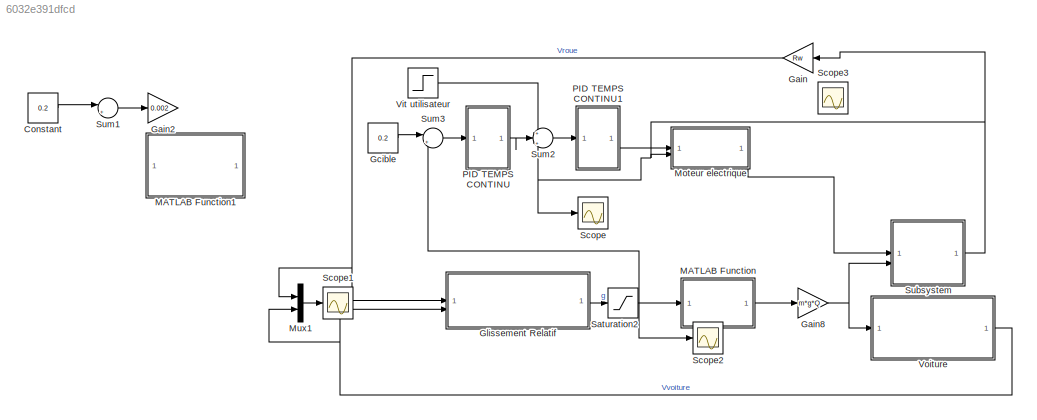
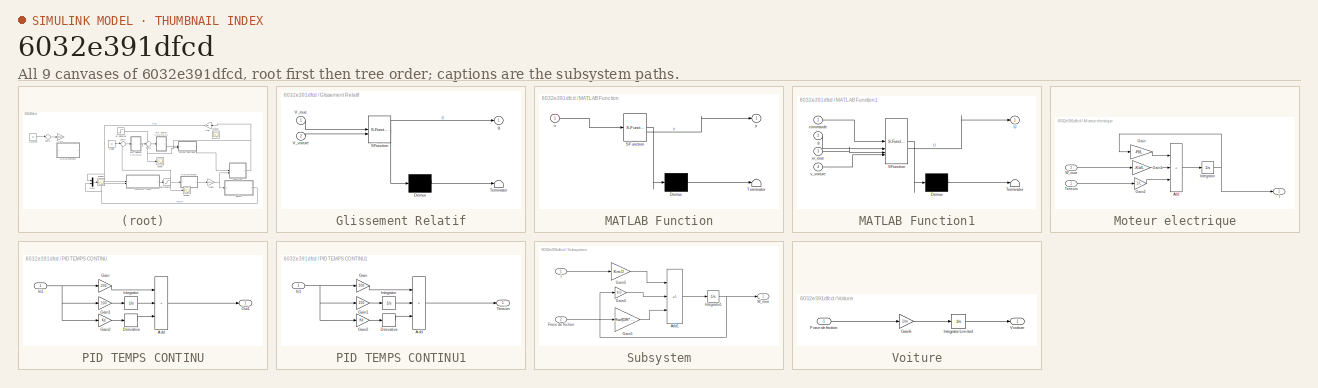
[diagram: thumbnail index - all 9 canvases of the model, root first then tree order]
MODEL slx_6032e391dfcd
KIND model
CONFIG AbsTol = auto
CONFIG EnableMultiTasking = off
CONFIG FixedStep = auto
CONFIG InitFcn = Cte_Traction
CONFIG MaxStep = auto
CONFIG MinStep = auto
CONFIG RelTol = 1e-3
CONFIG SampleTimeConstraint = Unconstrained
CONFIG SolverName = ode45
CONFIG StartTime = 0.0
CONFIG StopTime = 10
BLOCK [Constant] Constant
  Value = 0.2
BLOCK [Gain] Gain
  Gain = Rw
  NameLocation = top
BLOCK [Gain] Gain2
  Gain = 0.002
BLOCK [Gain] Gain8
  Gain = m*g*Q
BLOCK [Constant] Gcible
  Value = 0.2
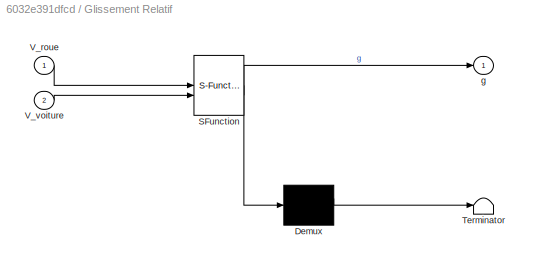
BLOCK [SubSystem] Glissement Relatif
  ErrorFcn = Stateflow.Translate.translate
  PermitHierarchicalResolution = ExplicitOnly
  SFBlockType = MATLAB Function
  TreatAsAtomicUnit = on
BLOCK [Demux] Glissement Relatif/ Demux 
  Outputs = 1
BLOCK [S-Function] Glissement Relatif/ SFunction 
  EnableBusSupport = on
  FunctionName = sf_sfun
  PortCounts = [2 2]
  SFcnIsStateOwnerBlock = off
  SFunctionDeploymentMode = off
  Tag = Stateflow S-Function 1
BLOCK [Terminator] Glissement Relatif/ Terminator 
BLOCK [Inport] Glissement Relatif/V_roue
BLOCK [Inport] Glissement Relatif/V_voiture
  Port = 2
BLOCK [Outport] Glissement Relatif/g
BLOCK [SubSystem] MATLAB Function
  ErrorFcn = Stateflow.Translate.translate
  PermitHierarchicalResolution = ExplicitOnly
  SFBlockType = MATLAB Function
  TreatAsAtomicUnit = on
BLOCK [Demux] MATLAB Function/ Demux 
  Outputs = 1
BLOCK [S-Function] MATLAB Function/ SFunction 
  EnableBusSupport = on
  FunctionName = sf_sfun
  PortCounts = [1 2]
  SFcnIsStateOwnerBlock = off
  SFunctionDeploymentMode = off
  Tag = Stateflow S-Function 2
BLOCK [Terminator] MATLAB Function/ Terminator 
BLOCK [Inport] MATLAB Function/u
BLOCK [Outport] MATLAB Function/y
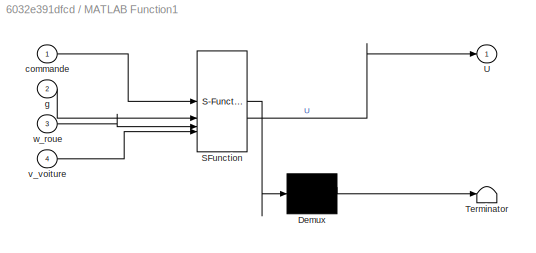
BLOCK [SubSystem] MATLAB Function1
  ErrorFcn = Stateflow.Translate.translate
  PermitHierarchicalResolution = ExplicitOnly
  SFBlockType = MATLAB Function
  TreatAsAtomicUnit = on
BLOCK [Demux] MATLAB Function1/ Demux 
  Outputs = 1
BLOCK [S-Function] MATLAB Function1/ SFunction 
  EnableBusSupport = on
  FunctionName = sf_sfun
  PortCounts = [4 2]
  SFcnIsStateOwnerBlock = off
  SFunctionDeploymentMode = off
  Tag = Stateflow S-Function 3
BLOCK [Terminator] MATLAB Function1/ Terminator 
BLOCK [Outport] MATLAB Function1/U
BLOCK [Inport] MATLAB Function1/commande
BLOCK [Inport] MATLAB Function1/g
  Port = 2
BLOCK [Inport] MATLAB Function1/v_voiture
  Port = 4
BLOCK [Inport] MATLAB Function1/w_roue
  Port = 3
BLOCK [SubSystem] Moteur electrique
BLOCK [Sum] Moteur electrique/Add
  IconShape = rectangular
  Inputs = +++
BLOCK [Gain] Moteur electrique/Gain
  Gain = -R/L
BLOCK [Gain] Moteur electrique/Gain1
  Gain = -Kb/L
BLOCK [Gain] Moteur electrique/Gain2
  Gain = 1/L
BLOCK [Outport] Moteur electrique/I
BLOCK [Integrator] Moteur electrique/Integrator
BLOCK [Inport] Moteur electrique/Tension
BLOCK [Inport] Moteur electrique/W_roue
  Port = 2
BLOCK [Mux] Mux1
  DisplayOption = bar
  Inputs = 2
BLOCK [SubSystem] PID TEMPS CONTINU
BLOCK [Sum] PID TEMPS CONTINU/Add
  IconShape = rectangular
  Inputs = +++
BLOCK [Derivative] PID TEMPS CONTINU/Derivative
BLOCK [Gain] PID TEMPS CONTINU/Gain
  Gain = 200
BLOCK [Gain] PID TEMPS CONTINU/Gain1
  Gain = 100
BLOCK [Gain] PID TEMPS CONTINU/Gain2
  Gain = Kd
BLOCK [Inport] PID TEMPS CONTINU/In1
BLOCK [Integrator] PID TEMPS CONTINU/Integrator
BLOCK [Outport] PID TEMPS CONTINU/Out1
BLOCK [SubSystem] PID TEMPS CONTINU1
BLOCK [Sum] PID TEMPS CONTINU1/Add
  IconShape = rectangular
  Inputs = +++
BLOCK [Derivative] PID TEMPS CONTINU1/Derivative
BLOCK [Gain] PID TEMPS CONTINU1/Gain
  Gain = 200
BLOCK [Gain] PID TEMPS CONTINU1/Gain1
  Gain = 100
BLOCK [Gain] PID TEMPS CONTINU1/Gain2
  Gain = Kd
BLOCK [Inport] PID TEMPS CONTINU1/In1
BLOCK [Integrator] PID TEMPS CONTINU1/Integrator
BLOCK [Outport] PID TEMPS CONTINU1/Tension
BLOCK [Saturate] Saturation2
  LowerLimit = -1
  UpperLimit = 1
BLOCK [Scope] Scope
  Floating = off
  NumInputPorts = 1
  ScopeSpecificationString = Simulink.scopes.TimeScopeBlockCfg('CurrentConfiguration', extmgr.ConfigurationSet(extmgr.Configuration('Core','General UI',true),extmgr.Configuration('Core','Source UI',true),extmgr.Configuration('Sources','WiredSimulink',true,'DataLoggingVariableName','ScopeData1'),extmgr.Configuration('Visuals','Time Domain',true,'SerializedDisplays',{struct('MinYLimReal','-2.24229','MaxYLimReal','20.18061','YLa...<+1503ch>
BLOCK [Scope] Scope1
  Floating = off
  NumInputPorts = 1
  ScopeSpecificationString = Simulink.scopes.TimeScopeBlockCfg('CurrentConfiguration', extmgr.ConfigurationSet(extmgr.Configuration('Core','General UI',true),extmgr.Configuration('Core','Source UI',true),extmgr.Configuration('Sources','WiredSimulink',true,'DataLoggingVariableName','ScopeData1'),extmgr.Configuration('Visuals','Time Domain',true,'SerializedDisplays',{struct('MinYLimReal','-0.67244','MaxYLimReal','6.05197','YLab...<+1528ch>
BLOCK [Scope] Scope2
  Floating = off
  NumInputPorts = 1
  ScopeSpecificationString = Simulink.scopes.TimeScopeBlockCfg('CurrentConfiguration', extmgr.ConfigurationSet(extmgr.Configuration('Core','General UI',true),extmgr.Configuration('Core','Source UI',true),extmgr.Configuration('Sources','WiredSimulink',true,'DataLoggingVariableName','ScopeData2'),extmgr.Configuration('Visuals','Time Domain',true,'SerializedDisplays',{struct('MinYLimReal','-0.02521','MaxYLimReal','0.22691','YLab...<+1499ch>
BLOCK [Scope] Scope3
  Floating = off
  NumInputPorts = 1
  ScopeSpecificationString = Simulink.scopes.TimeScopeBlockCfg('CurrentConfiguration', extmgr.ConfigurationSet(extmgr.Configuration('Core','General UI',true),extmgr.Configuration('Core','Source UI',true),extmgr.Configuration('Sources','WiredSimulink',true,'DataLoggingVariableName','ScopeData3'),extmgr.Configuration('Visuals','Time Domain',true,'SerializedDisplays',{struct('MinYLimReal','-1.00000','MaxYLimReal','1.00000','YLab...<+1534ch>
BLOCK [SubSystem] Subsystem
BLOCK [Sum] Subsystem/Add1
  IconShape = rectangular
  Inputs = +--
BLOCK [Inport] Subsystem/Froce de friction
  Port = 2
BLOCK [Gain] Subsystem/Gain3
  Gain = Km/J
BLOCK [Gain] Subsystem/Gain4
  Gain = b/J
BLOCK [Gain] Subsystem/Gain5
  Gain = Rw/(GR*J)
BLOCK [Inport] Subsystem/I
BLOCK [Integrator] Subsystem/Integrator1
BLOCK [Outport] Subsystem/W_roue
BLOCK [Sum] Sum1
  Inputs = |+-
BLOCK [Sum] Sum2
  Inputs = +|+-
BLOCK [Sum] Sum3
  Inputs = |+-
BLOCK [Step] Vit utilisateur
  SampleTime = 0
  Time = 400
BLOCK [SubSystem] Voiture
BLOCK [Inport] Voiture/Force de friction
BLOCK [Gain] Voiture/Gain6
  Gain = 1/m
BLOCK [Integrator] Voiture/Integrator Limited
  LimitOutput = on
  LowerSaturationLimit = 0
  UpperSaturationLimit = +inf
BLOCK [Outport] Voiture/Vvoiture
LINE Constant:1 -> Sum1:1
NET Gain8:1 -> Subsystem:2, Voiture:1
NET Gain:1 -> Glissement Relatif:1, Mux1:1
LINE Gcible:1 -> Sum3:1
LINE Glissement Relatif:1 -> Saturation2:1
LINE MATLAB Function:1 -> Gain8:1
LINE Moteur electrique/Add:1 -> Moteur electrique/Integrator:1
LINE Moteur electrique/Gain1:1 -> Moteur electrique/Add:2
LINE Moteur electrique/Gain2:1 -> Moteur electrique/Add:3
LINE Moteur electrique/Gain:1 -> Moteur electrique/Add:1
NET Moteur electrique/Integrator:1 -> Moteur electrique/Gain:1, Moteur electrique/I:1
LINE Moteur electrique/Tension:1 -> Moteur electrique/Gain2:1
LINE Moteur electrique/W_roue:1 -> Moteur electrique/Gain1:1
LINE Moteur electrique:1 -> Subsystem:1
LINE Mux1:1 -> Scope1:1
LINE PID TEMPS CONTINU/Add:1 -> PID TEMPS CONTINU/Out1:1
LINE PID TEMPS CONTINU/Derivative:1 -> PID TEMPS CONTINU/Add:3
LINE PID TEMPS CONTINU/Gain1:1 -> PID TEMPS CONTINU/Integrator:1
LINE PID TEMPS CONTINU/Gain2:1 -> PID TEMPS CONTINU/Derivative:1
LINE PID TEMPS CONTINU/Gain:1 -> PID TEMPS CONTINU/Add:1
NET PID TEMPS CONTINU/In1:1 -> PID TEMPS CONTINU/Gain1:1, PID TEMPS CONTINU/Gain2:1, PID TEMPS CONTINU/Gain:1
LINE PID TEMPS CONTINU/Integrator:1 -> PID TEMPS CONTINU/Add:2
LINE PID TEMPS CONTINU1/Add:1 -> PID TEMPS CONTINU1/Tension:1
LINE PID TEMPS CONTINU1/Derivative:1 -> PID TEMPS CONTINU1/Add:3
LINE PID TEMPS CONTINU1/Gain1:1 -> PID TEMPS CONTINU1/Integrator:1
LINE PID TEMPS CONTINU1/Gain2:1 -> PID TEMPS CONTINU1/Derivative:1
LINE PID TEMPS CONTINU1/Gain:1 -> PID TEMPS CONTINU1/Add:1
NET PID TEMPS CONTINU1/In1:1 -> PID TEMPS CONTINU1/Gain1:1, PID TEMPS CONTINU1/Gain2:1, PID TEMPS CONTINU1/Gain:1
LINE PID TEMPS CONTINU1/Integrator:1 -> PID TEMPS CONTINU1/Add:2
LINE PID TEMPS CONTINU1:1 -> Moteur electrique:1
LINE PID TEMPS CONTINU:1 -> Sum2:2
NET Saturation2:1 -> MATLAB Function:1, Scope2:1, Sum3:2
LINE Subsystem/Add1:1 -> Subsystem/Integrator1:1
LINE Subsystem/Froce de friction:1 -> Subsystem/Gain5:1
LINE Subsystem/Gain3:1 -> Subsystem/Add1:1
LINE Subsystem/Gain4:1 -> Subsystem/Add1:2
LINE Subsystem/Gain5:1 -> Subsystem/Add1:3
LINE Subsystem/I:1 -> Subsystem/Gain3:1
NET Subsystem/Integrator1:1 -> Subsystem/Gain4:1, Subsystem/W_roue:1
NET Subsystem:1 -> Gain:1, Moteur electrique:2, Scope:1, Sum2:3
LINE Sum1:1 -> Gain2:1
LINE Sum2:1 -> PID TEMPS CONTINU1:1
LINE Sum3:1 -> PID TEMPS CONTINU:1
LINE Vit utilisateur:1 -> Sum2:1
LINE Voiture/Force de friction:1 -> Voiture/Gain6:1
LINE Voiture/Gain6:1 -> Voiture/Integrator Limited:1
LINE Voiture/Integrator Limited:1 -> Voiture/Vvoiture:1
NET Voiture:1 -> Glissement Relatif:2, Mux1:2
note: NET lines group one-source signal fan-out (src -> all destinations, sorted); 1:1 wires keep LINE
CHART Glissement Relatif states=1 transitions=1
  STATE_LABEL 'eML_blk_kernel()'
  STATE_LABEL 'SCRIPT:\nfunction g = calcGlissement(V_roue, V_voiture)\n    g = (V_roue-V_voiture)/(abs(V_voiture)+0.001);\nend\n'
CHART MATLAB Function states=1 transitions=1
  STATE_LABEL 'eML_blk_kernel()'
  STATE_LABEL 'SCRIPT:\nfunction y = fcn(u)\n\ny = u;\n'
CHART MATLAB Function1 states=1 transitions=1
  STATE_LABEL 'eML_blk_kernel()'
  STATE_LABEL 'SCRIPT:\nfunction U = calc_tension_correction_fixed_g(commande, g, w_roue, v_voiture)\n    % calc_tension_correction_fixed_g : Corrige la tension pour maintenir g = 0.005 avec contrôle PID\n    % Entrées :\n    %   commande  : Commande utilisateur (valeur entre 0 et 1)\n    %   g         : Glissement actuel (valeur entre 0 et 1)\n    %   w_roue    : Vitesse angulaire actuelle de la roue (en rad/s)\n    %...<+2601ch>'
CHART  states=0 transitions=0
CHART  states=0 transitions=0
CHART  states=0 transitions=0
